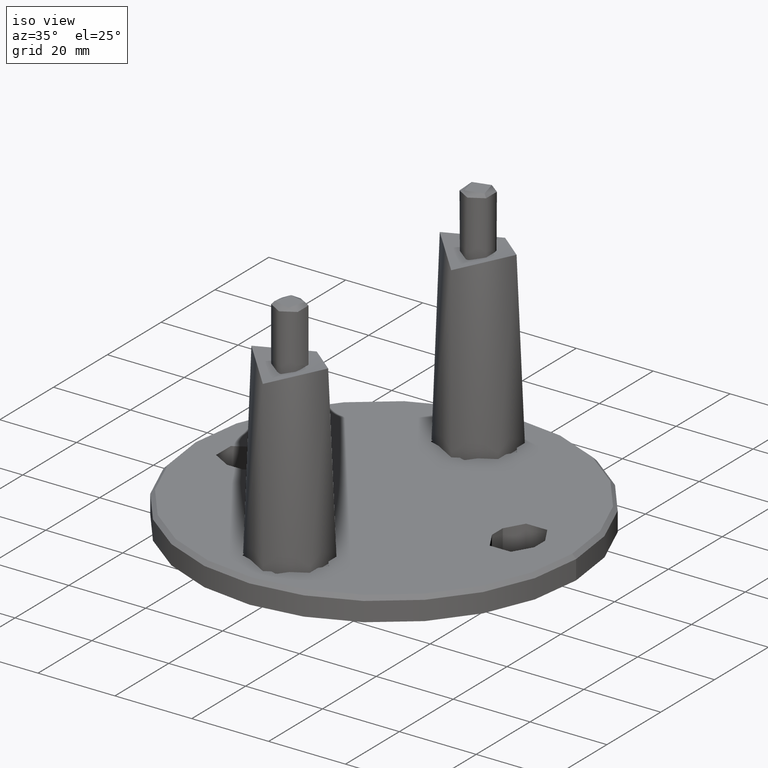
[diagram: clean part render]
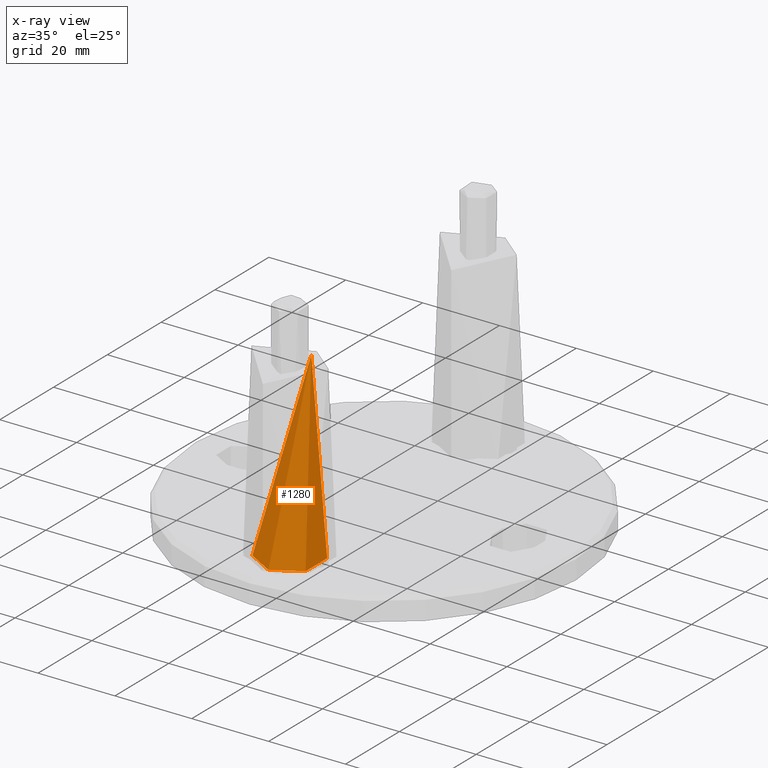
[diagram: x-ray — body ghosted, one internal face saturated and labeled with its STEP entity id]
A machine part, iso view, then the same camera in x-ray: the body is ghosted and one INTERNAL B-rep face — a face not visible from any outside direction — is saturated and labeled: STEP entity #1280.
In plain terms, the highlighted cylindrical surface (bore or boss wall) has radius 8 mm, axis along (-0, 0, -1).
Its self-contained STEP definition (entity closure, byte-faithful):
#23 = ORIENTED_EDGE ( 'NONE', *, *, #5407, .T. ) ;
#652 = CARTESIAN_POINT ( 'NONE',  ( 0.0000000000000000000, 0.0000000000000000000, 8.000000000000000000 ) ) ;
#683 = DIRECTION ( 'NONE',  ( 0.0000000000000000000, 0.0000000000000000000, 1.000000000000000000 ) ) ;
#726 = CARTESIAN_POINT ( 'NONE',  ( 7.946700934037632900, 46.04542448166517200, 1.060978647405205000 ) ) ;
#990 = CARTESIAN_POINT ( 'NONE',  ( -5.839409913531705200, 45.31918769600405700, 5.474354043041676800 ) ) ;
#1048 = CARTESIAN_POINT ( 'NONE',  ( 4.019930523539358100, 44.88329065571777900, 6.921638728661008600 ) ) ;
#1240 = VERTEX_POINT ( 'NONE', #652 ) ;
#1280 = ADVANCED_FACE ( 'NONE', ( #12420, #3319 ), #9062, .F. ) ;
#1495 = DIRECTION ( 'NONE',  ( -0.0000000000000000000, -1.000000000000000000, -0.0000000000000000000 ) ) ;
#1862 = AXIS2_PLACEMENT_3D ( 'NONE', #10377, #1495, #15571 ) ;
#1962 = CARTESIAN_POINT ( 'NONE',  ( 6.924108717032224200, 45.66218820251172900, 4.015592442816007700 ) ) ;
#2124 = CARTESIAN_POINT ( 'NONE',  ( 7.948068961608544900, 46.04597323479185200, -1.053060681145291600 ) ) ;
#2173 = CARTESIAN_POINT ( 'NONE',  ( 2.080262128454891900, 44.60079738458542700, -7.729258207646523700 ) ) ;
#2218 = CARTESIAN_POINT ( 'NONE',  ( -7.740670532928314500, 45.96337466075911500, 2.087624345647437300 ) ) ;
#2296 = CARTESIAN_POINT ( 'NONE',  ( 6.786908770510334100, 45.61514836500627700, -4.243320249564356500 ) ) ;
#2333 = CARTESIAN_POINT ( 'NONE',  ( -6.501648725235453300, 45.52100930370571800, 4.668596399855251100 ) ) ;
#2387 = CARTESIAN_POINT ( 'NONE',  ( 6.358058911530736000, 45.47360351489875500, 4.882921647729439500 ) ) ;
#2452 = CARTESIAN_POINT ( 'NONE',  ( -5.285364833860087200, 45.16837107819286200, -6.011047975210184200 ) ) ;
#3287 = CARTESIAN_POINT ( 'NONE',  ( -3.564983628642337500, 44.79618061007140300, -7.180901118691163100 ) ) ;
#3319 = FACE_OUTER_BOUND ( 'NONE', #6994, .T. ) ;
#3346 = CARTESIAN_POINT ( 'NONE',  ( 7.791840223846911300, 45.98375370405052100, -1.832323710539754700 ) ) ;
#3393 = CARTESIAN_POINT ( 'NONE',  ( 6.923065522502464700, 45.66182623570400500, -4.017414146606949300 ) ) ;
#3429 = CARTESIAN_POINT ( 'NONE',  ( 0.5233955155464958800, 44.50482535184077200, 7.987240395986136200 ) ) ;
#3446 = CARTESIAN_POINT ( 'NONE',  ( 1.057376813885607200, 44.52014363093380900, -7.947037112781933900 ) ) ;
#3495 = CARTESIAN_POINT ( 'NONE',  ( 1.049801174281113500, 44.52437040543672000, 7.935229644027000300 ) ) ;
#3564 = CARTESIAN_POINT ( 'NONE',  ( 7.999846470075008000, 46.06731153197319600, -0.5296391970087568300 ) ) ;
#3590 = EDGE_LOOP ( 'NONE', ( #5045 ) ) ;
#3613 = CARTESIAN_POINT ( 'NONE',  ( -6.024766308394668500, 45.37056871456503900, -5.288587148533993700 ) ) ;
#3664 = CARTESIAN_POINT ( 'NONE',  ( -7.947242598539991900, 46.04564437177190000, 1.057114368380220400 ) ) ;
#4671 = CARTESIAN_POINT ( 'NONE',  ( 3.561652206488780800, 44.79555137439260900, -7.182747971165472500 ) ) ;
#4711 = CARTESIAN_POINT ( 'NONE',  ( 6.790161462787334100, 45.61625746323582600, 4.238002659787723800 ) ) ;
#4824 = CARTESIAN_POINT ( 'NONE',  ( -6.346805666809564700, 45.47160314627671300, 4.877102246928885200 ) ) ;
#4841 = CARTESIAN_POINT ( 'NONE',  ( 4.874022891345005900, 45.06684368493757400, -6.349183181187184400 ) ) ;
#4901 = CARTESIAN_POINT ( 'NONE',  ( -6.354564512688107000, 45.47244755900175800, -4.888167589712392000 ) ) ;
#5045 = ORIENTED_EDGE ( 'NONE', *, *, #12442, .F. ) ;
#5407 = EDGE_CURVE ( 'NONE', #15256, #15256, #9135, .T. ) ;
#5886 = CARTESIAN_POINT ( 'NONE',  ( 7.483755059323406100, 45.86455460791448500, -2.839275379970025900 ) ) ;
#5931 = CARTESIAN_POINT ( 'NONE',  ( 4.878909776184770000E-016, 44.50000000000001400, -8.000000000000001800 ) ) ;
#6039 = CARTESIAN_POINT ( 'NONE',  ( 5.289902162564145800, 45.16699716640967900, 6.024181415992583100 ) ) ;
#6103 = CARTESIAN_POINT ( 'NONE',  ( 2.593418853257765600, 44.65354927127494700, 7.586083449563222600 ) ) ;
#6219 = CARTESIAN_POINT ( 'NONE',  ( 6.029561497851136500, 45.37189978386175000, 5.283768992482768200 ) ) ;
#6994 = EDGE_LOOP ( 'NONE', ( #23 ) ) ;
#7168 = CARTESIAN_POINT ( 'NONE',  ( 4.665340713526976700, 45.01853165201345800, -6.503982036825620500 ) ) ;
#7224 = CARTESIAN_POINT ( 'NONE',  ( -1.057863989960127900, 44.52012050116505300, -7.947104956248410600 ) ) ;
#7270 = CARTESIAN_POINT ( 'NONE',  ( -1.317400615505464300, 44.53936684260621300, 7.895236049593119500 ) ) ;
#7284 = CARTESIAN_POINT ( 'NONE',  ( 5.471947518298333300, 45.21746975478209400, -5.841669855936453700 ) ) ;
#7383 = CARTESIAN_POINT ( 'NONE',  ( 1.314571903349928100, 44.53919797751965600, 7.895687306099840300 ) ) ;
#7393 = CARTESIAN_POINT ( 'NONE',  ( -5.477004757607991400, 45.21883022749587900, -5.836879274041995000 ) ) ;
#7446 = CARTESIAN_POINT ( 'NONE',  ( 4.243097550372780800, 44.92779020892788100, 6.787007380796166200 ) ) ;
#7508 = CARTESIAN_POINT ( 'NONE',  ( -8.000379710101087800, 46.06752881921929100, 0.5215719460668238900 ) ) ;
#7627 = CARTESIAN_POINT ( 'NONE',  ( -7.183268770184788800, 45.75291278382396600, -3.559674719447241600 ) ) ;
#8268 = CARTESIAN_POINT ( 'NONE',  ( 0.0000000000000000000, 44.50000000000000000, -8.000000000000000000 ) ) ;
#8336 = CARTESIAN_POINT ( 'NONE',  ( 7.739838232737581900, 45.96304738132010200, 2.090606504423533400 ) ) ;
#8576 = CARTESIAN_POINT ( 'NONE',  ( -7.947600105691981800, 46.04578602570084200, -1.055534364224025100 ) ) ;
#8595 = CARTESIAN_POINT ( 'NONE',  ( 7.726483602941185900, 45.95795706344749500, -2.090586408386796000 ) ) ;
#8643 = CARTESIAN_POINT ( 'NONE',  ( -6.934640652798346000, 45.66395334187646400, 4.022396422649738000 ) ) ;
#8680 = CARTESIAN_POINT ( 'NONE',  ( -6.937978636682195200, 45.66506001166484900, -4.017352980255931300 ) ) ;
#8972 = CIRCLE ( 'NONE', #9352, 8.000000000000000000 ) ;
#9062 = CYLINDRICAL_SURFACE ( 'NONE', #1862, 8.000000000000000000 ) ;
#9135 = B_SPLINE_CURVE_WITH_KNOTS ( 'NONE', 3,
 ( #5931, #12284, #7224, #14764, #11054, #9728, #11001, #3287, #12121, #13408, #12403, #2452, #7393, #3613, #4901, #8680, #7627, #13468, #13751, #13551, #12444, #8576, #11226, #7508, #3664, #2218, #11104, #13710, #8643, #2333, #4824, #14804, #990, #16056, #9943, #9820, #11046, #10006, #14967, #13652, #13779, #7270, #12394, #10990, #12501, #3429, #3495, #7383, #12272, #6103, #13606, #14911, #1048, #7446, #16216, #6039, #6219, #2387, #4711, #1962, #10799, #12075, #14605, #8336, #726, #10848, #3564, #2124, #3346, #8595, #12181, #5886, #12230, #13454, #3393, #2296, #9733, #11119, #7284, #12407, #4841, #7168, #14716, #4671, #13506, #16011, #2173, #11009, #3446, #12458, #13898 ),
 .UNSPECIFIED., .T., .F.,
 ( 4, 2, 2, 2, 2, 2, 2, 2, 2, 2, 2, 2, 2, 2, 2, 2, 2, 2, 2, 2, 2, 2, 1, 2, 2, 2, 2, 2, 2, 2, 2, 2, 2, 2, 2, 2, 2, 2, 2, 2, 2, 2, 2, 2, 2, 4 ),
 ( 0.0000000000000000000, 0.001577825287749400600, 0.002366737931624100600, 0.003155650575498800400, 0.004733475863248197800, 0.005522388507122898000, 0.006311301150997597300, 0.007889126438747002000, 0.009466951726496407700, 0.01025586437037111000, 0.01104477701424581300, 0.01262260230199521900, 0.01420042758974462300, 0.01577825287749403200, 0.01735607816524343400, 0.01814499080911814400, 0.01893390345299285000, 0.02051172874074225200, 0.02130064138461695800, 0.02208955402849166100, 0.02366737931624106700, 0.02445629196011577700, 0.02524520460399048300, 0.02603411724786518900, 0.02682302989173989200, 0.02840085517948930100, 0.02918976782336401100, 0.02997868046723871700, 0.03155650575498812600, 0.03313433104273752500, 0.03392324368661223100, 0.03471215633048693000, 0.03628998161823633600, 0.03786780690598573500, 0.03944563219373513300, 0.04023454483760984000, 0.04102345748148453200, 0.04181237012535923800, 0.04260128276923393800, 0.04417910805698334300, 0.04496802070085805000, 0.04575693334473274200, 0.04733475863248214100, 0.04812367127635684700, 0.04891258392023154600, 0.05049040920798095200 ),
 .UNSPECIFIED. ) ;
#9352 = AXIS2_PLACEMENT_3D ( 'NONE', #15867, #14612, #683 ) ;
#9728 = CARTESIAN_POINT ( 'NONE',  ( -2.590155204408461000, 44.65728862100918000, -7.573696196353273200 ) ) ;
#9733 = CARTESIAN_POINT ( 'NONE',  ( 6.351137653802894100, 45.47139070676863100, -4.892304170921824500 ) ) ;
#9820 = CARTESIAN_POINT ( 'NONE',  ( -4.242147281910837900, 44.92758998918834100, 6.787627049505395900 ) ) ;
#9943 = CARTESIAN_POINT ( 'NONE',  ( -4.890256824876025200, 45.06699941691660900, 6.352650335502247900 ) ) ;
#10006 = CARTESIAN_POINT ( 'NONE',  ( -3.554352590122448400, 44.79876278145621200, 7.171844883690545700 ) ) ;
#10377 = CARTESIAN_POINT ( 'NONE',  ( 0.0000000000000000000, 59.50000000000000000, 0.0000000000000000000 ) ) ;
#10799 = CARTESIAN_POINT ( 'NONE',  ( 7.171366734196467100, 45.74934381228273100, 3.555244486071665200 ) ) ;
#10848 = CARTESIAN_POINT ( 'NONE',  ( 8.000152854738695800, 46.06743637911287700, 0.5249909757280097900 ) ) ;
#10990 = CARTESIAN_POINT ( 'NONE',  ( -0.5282184188567299300, 44.50495233390586900, 7.986903893498826800 ) ) ;
#11001 = CARTESIAN_POINT ( 'NONE',  ( -2.839801452535266600, 44.68964014944084100, -7.483591383647665300 ) ) ;
#11009 = CARTESIAN_POINT ( 'NONE',  ( 1.826500185600148600, 44.57726373176981800, -7.793090415337274200 ) ) ;
#11046 = CARTESIAN_POINT ( 'NONE',  ( -4.016441833377685500, 44.88261941069809100, 6.923653397572856200 ) ) ;
#11054 = CARTESIAN_POINT ( 'NONE',  ( -2.084899951848677700, 44.60123704211037700, -7.728063809801364300 ) ) ;
#11104 = CARTESIAN_POINT ( 'NONE',  ( -7.587914031988928400, 45.90327089284397000, 2.588894941886095600 ) ) ;
#11119 = CARTESIAN_POINT ( 'NONE',  ( 6.022468597644668800, 45.36985264324201200, -5.291421112088453800 ) ) ;
#11226 = CARTESIAN_POINT ( 'NONE',  ( -7.999616096595611100, 46.06721765828719100, -0.5331558006900803900 ) ) ;
#12075 = CARTESIAN_POINT ( 'NONE',  ( 7.285072458491114000, 45.79072395564602300, 3.316092605712492000 ) ) ;
#12121 = CARTESIAN_POINT ( 'NONE',  ( -4.022732067198237600, 44.88044726604563600, -6.934654044351272100 ) ) ;
#12181 = CARTESIAN_POINT ( 'NONE',  ( 7.572577428721422700, 45.89841220353225300, -2.593293559061421700 ) ) ;
#12230 = CARTESIAN_POINT ( 'NONE',  ( 7.282848922320297900, 45.78991222357333200, -3.320871278130276900 ) ) ;
#12272 = CARTESIAN_POINT ( 'NONE',  ( 2.092658154046794600, 44.59712465219394100, 7.739553678955541500 ) ) ;
#12284 = CARTESIAN_POINT ( 'NONE',  ( -0.5338604161448098400, 44.50000000000000700, -8.000000000000001800 ) ) ;
#12394 = CARTESIAN_POINT ( 'NONE',  ( -1.053428681918235200, 44.52455796062616900, 7.934729359167859800 ) ) ;
#12403 = CARTESIAN_POINT ( 'NONE',  ( -4.883360033972841100, 45.06906055487561200, -6.341969249837155200 ) ) ;
#12407 = CARTESIAN_POINT ( 'NONE',  ( 5.277804704357713200, 45.16641735668576300, -6.017724130955569400 ) ) ;
#12420 = FACE_OUTER_BOUND ( 'NONE', #3590, .T. ) ;
#12442 = EDGE_CURVE ( 'NONE', #1240, #1240, #8972, .T. ) ;
#12444 = CARTESIAN_POINT ( 'NONE',  ( -7.791955934262214000, 45.98380002851972400, -1.831678950315554400 ) ) ;
#12458 = CARTESIAN_POINT ( 'NONE',  ( 0.5338604161448108300, 44.50000000000001400, -8.000000000000001800 ) ) ;
#12501 = CARTESIAN_POINT ( 'NONE',  ( -0.002708335507318968200, 44.49511146623307700, 8.012927036125603300 ) ) ;
#13408 = CARTESIAN_POINT ( 'NONE',  ( -4.672224535631307200, 45.02007361666301900, -6.499097467223464300 ) ) ;
#13454 = CARTESIAN_POINT ( 'NONE',  ( 7.170764763285532700, 45.74912591522354400, -3.556484973093877700 ) ) ;
#13468 = CARTESIAN_POINT ( 'NONE',  ( -7.483653766154033900, 45.86451825725073000, -2.839469121433534100 ) ) ;
#13506 = CARTESIAN_POINT ( 'NONE',  ( 2.832554385518804000, 44.68864663216004400, -7.486383931337960500 ) ) ;
#13551 = CARTESIAN_POINT ( 'NONE',  ( -7.726537169543098200, 45.95797758627133300, -2.090428715184010000 ) ) ;
#13606 = CARTESIAN_POINT ( 'NONE',  ( 3.318830784653905600, 44.75996443104489900, 7.283816519234682700 ) ) ;
#13652 = CARTESIAN_POINT ( 'NONE',  ( -2.596980760270735500, 44.65404838226278600, 7.584675655422323400 ) ) ;
#13710 = CARTESIAN_POINT ( 'NONE',  ( -7.181815642022718800, 45.75235736276158600, 3.563753703747738000 ) ) ;
#13751 = CARTESIAN_POINT ( 'NONE',  ( -7.572433846019352500, 45.89835685443867400, -2.593745263756161500 ) ) ;
#13779 = CARTESIAN_POINT ( 'NONE',  ( -2.097192357331461000, 44.59754648789720500, 7.738408806625883200 ) ) ;
#13898 = CARTESIAN_POINT ( 'NONE',  ( 4.878909776184770000E-016, 44.50000000000001400, -8.000000000000001800 ) ) ;
#14605 = CARTESIAN_POINT ( 'NONE',  ( 7.587329852579181000, 45.90306490763855200, 2.589870515811190100 ) ) ;
#14612 = DIRECTION ( 'NONE',  ( 0.0000000000000000000, 1.000000000000000000, 0.0000000000000000000 ) ) ;
#14716 = CARTESIAN_POINT ( 'NONE',  ( 4.019131361349426600, 44.87979992631039000, -6.936521342487770500 ) ) ;
#14764 = CARTESIAN_POINT ( 'NONE',  ( -1.829899526875574000, 44.57754605465673600, -7.792326743230234800 ) ) ;
#14804 = CARTESIAN_POINT ( 'NONE',  ( -6.015549165441310500, 45.37063331822343300, 5.280268623602693400 ) ) ;
#14911 = CARTESIAN_POINT ( 'NONE',  ( 3.557478729552174400, 44.79929248979370700, 7.170304679228578100 ) ) ;
#14967 = CARTESIAN_POINT ( 'NONE',  ( -3.318550089879458200, 44.75993499431535800, 7.283895164522491900 ) ) ;
#15256 = VERTEX_POINT ( 'NONE', #8268 ) ;
#15571 = DIRECTION ( 'NONE',  ( 0.0000000000000000000, 0.0000000000000000000, -1.000000000000000000 ) ) ;
#15867 = CARTESIAN_POINT ( 'NONE',  ( 0.0000000000000000000, 0.0000000000000000000, 0.0000000000000000000 ) ) ;
#16011 = CARTESIAN_POINT ( 'NONE',  ( 2.582534745200882200, 44.65637018432345000, -7.576241631137765600 ) ) ;
#16056 = CARTESIAN_POINT ( 'NONE',  ( -5.289170678200465900, 45.16686709796274400, 6.024426515788947600 ) ) ;
#16216 = CARTESIAN_POINT ( 'NONE',  ( 4.889511439851941300, 45.06684746373633700, 6.353114347735414400 ) ) ;